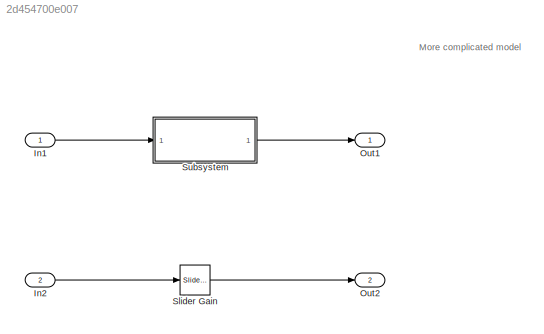
MODEL slx_2d454700e007
KIND model
CONFIG AbsTol = auto
CONFIG EnableMultiTasking = off
CONFIG FixedStep = auto
CONFIG MaxStep = auto
CONFIG MinStep = auto
CONFIG RelTol = 1e-3
CONFIG SampleTimeConstraint = Unconstrained
CONFIG SolverName = VariableStepAuto
CONFIG StartTime = 0.0
CONFIG StopTime = 10.0
BLOCK [Inport] In1
BLOCK [Inport] In2
  Port = 2
BLOCK [Outport] Out1
BLOCK [Outport] Out2
  Port = 2
BLOCK [Reference] Slider Gain  REF=simulink/Math
Operations/Slider
Gain
  SourceBlock = simulink/Math\nOperations/Slider\nGain
  SourceType = Slider Gain
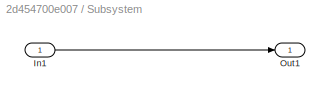
BLOCK [SubSystem] Subsystem
BLOCK [Inport] Subsystem/In1
BLOCK [Outport] Subsystem/Out1
ANNOTATION (root): More complicated model
LINE In1:1 -> Subsystem:1
LINE In2:1 -> Slider Gain:1
LINE Slider Gain:1 -> Out2:1
LINE Subsystem/In1:1 -> Subsystem/Out1:1
LINE Subsystem:1 -> Out1:1
